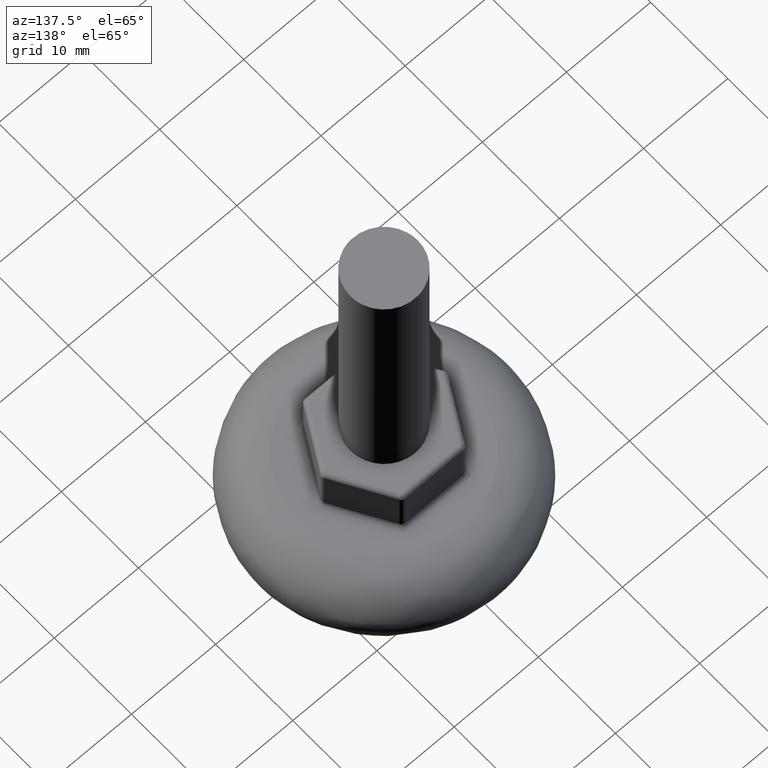
[diagram: clean part render]
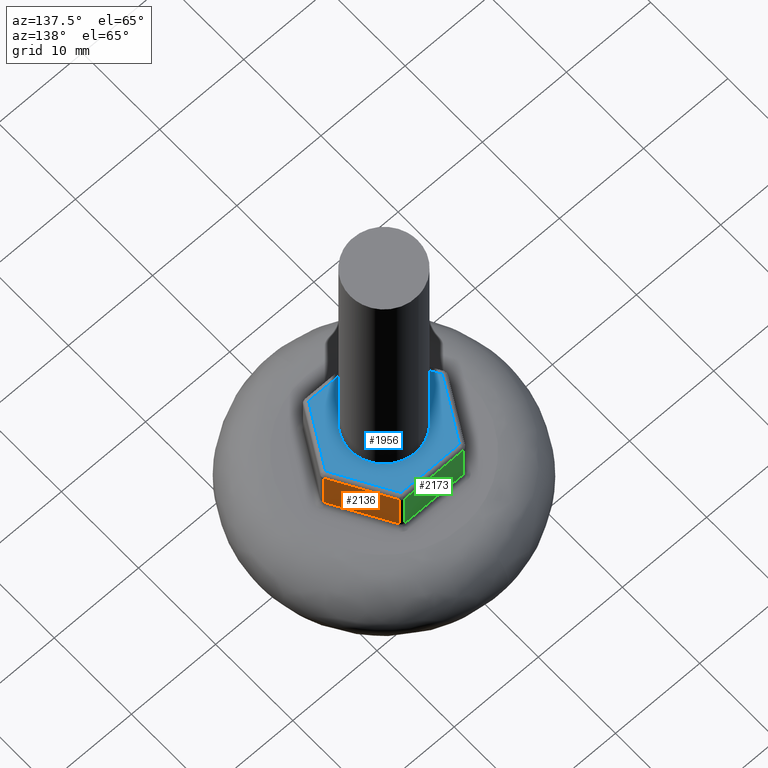
[diagram: same view with three faces highlighted in distinct colors, each labeled with its STEP entity id]
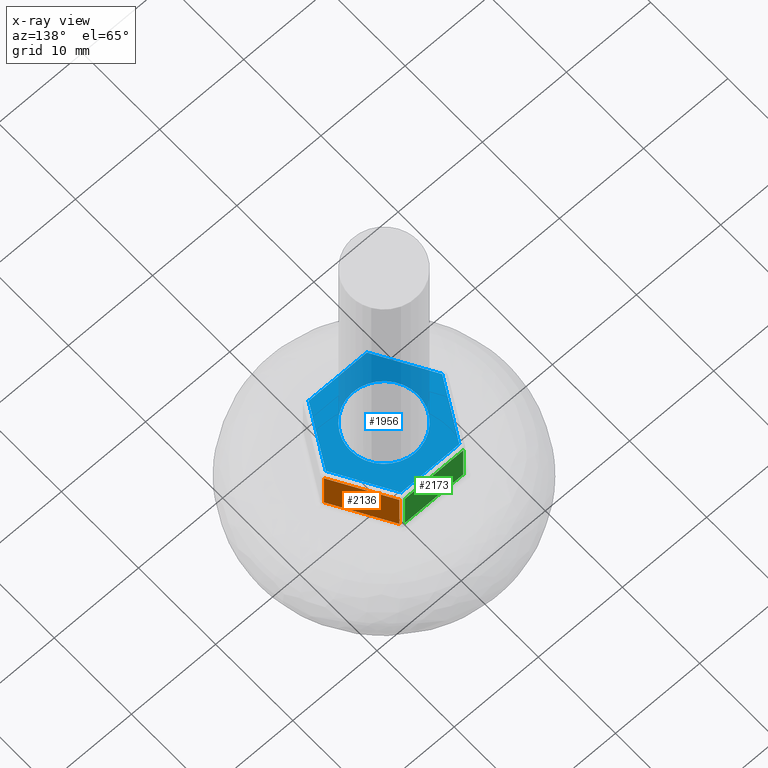
[diagram: x-ray of the same camera — body ghosted, the three highlighted faces saturated]
A machine part, auxiliary view with three faces highlighted in distinct colors.
The next image is the same camera in x-ray (body ghosted, the three faces saturated) — at least one of them is partly hidden behind the body in this view.
Their STEP definitions:

[orange] entity #2136 — the highlighted face is a freeform B-spline surface patch.
#928=CARTESIAN_POINT('',(3.891559987973060,6.250000020831281,10.500000000000000));
#929=VERTEX_POINT('',#928);
#1053=CARTESIAN_POINT('',(7.355662000000000,0.250000000000000,10.500000000000000));
#1054=VERTEX_POINT('',#1053);
#1078=CARTESIAN_POINT('',(7.355662000000000,0.250000000000000,10.500000000000000));
#1079=CARTESIAN_POINT('',(3.891559987973060,6.250000020831281,10.500000000000000));
#1080=QUASI_UNIFORM_CURVE('',1,(#1078,#1079),.UNSPECIFIED.,.F.,.U.);
#1081=EDGE_CURVE('',#1054,#929,#1080,.T.);
#1503=CARTESIAN_POINT('',(7.355662000000000,0.250000000000000,15.500000000000000));
#1504=VERTEX_POINT('',#1503);
#1607=CARTESIAN_POINT('',(3.891559987973060,6.250000020831281,15.500000000000000));
#1608=VERTEX_POINT('',#1607);
#1630=CARTESIAN_POINT('',(3.891559987973060,6.250000020831281,15.500000000000000));
#1631=CARTESIAN_POINT('',(7.355662000000000,0.250000000000000,15.500000000000000));
#1632=QUASI_UNIFORM_CURVE('',1,(#1630,#1631),.UNSPECIFIED.,.F.,.U.);
#1633=EDGE_CURVE('',#1608,#1504,#1632,.T.);
#2112=CARTESIAN_POINT('',(7.355662000000000,0.250000000000000,15.500000000000000));
#2113=CARTESIAN_POINT('',(7.355662000000000,0.250000000000000,10.500000000000000));
#2114=QUASI_UNIFORM_CURVE('',1,(#2112,#2113),.UNSPECIFIED.,.F.,.U.);
#2115=EDGE_CURVE('',#1504,#1054,#2114,.T.);
#2121=CARTESIAN_POINT('',(7.528693856268136,-0.049699933087649,10.250250009690969));
#2122=CARTESIAN_POINT('',(3.718528007818980,6.549700168495651,10.250250009690969));
#2123=CARTESIAN_POINT('',(7.528693856268136,-0.049699933087649,15.749750124419480));
#2124=CARTESIAN_POINT('',(3.718528007818980,6.549700168495651,15.749750124419480));
#2125=B_SPLINE_SURFACE_WITH_KNOTS('',1,1,((#2121,#2123),(#2122,#2124)),.UNSPECIFIED.,.F.,.F.,.U.,(2,2),(2,2),(0.0,7.620331061933329),(0.0,5.499500114728511),.UNSPECIFIED.);
#2126=ORIENTED_EDGE('',*,*,#2115,.T.);
#2127=ORIENTED_EDGE('',*,*,#1081,.T.);
#2128=CARTESIAN_POINT('',(3.891559987973060,6.250000020831281,15.500000000000000));
#2129=CARTESIAN_POINT('',(3.891559987973060,6.250000020831281,10.500000000000000));
#2130=QUASI_UNIFORM_CURVE('',1,(#2128,#2129),.UNSPECIFIED.,.F.,.U.);
#2131=EDGE_CURVE('',#1608,#929,#2130,.T.);
#2132=ORIENTED_EDGE('',*,*,#2131,.F.);
#2133=ORIENTED_EDGE('',*,*,#1633,.T.);
#2134=EDGE_LOOP('',(#2126,#2127,#2132,#2133));
#2135=FACE_OUTER_BOUND('',#2134,.T.);
#2136=ADVANCED_FACE('',(#2135),#2125,.T.);

[blue] entity #1956 — the highlighted face is a freeform B-spline surface patch.
#151=CARTESIAN_POINT('',(0.034906142043231,3.999847692256251,16.000000000000249));
#152=VERTEX_POINT('',#151);
#158=CARTESIAN_POINT('',(-4.0,0.0,16.000000000000249));
#159=VERTEX_POINT('',#158);
#160=CARTESIAN_POINT('',(0.034906142043231,3.999847692256251,16.000000000000249));
#161=CARTESIAN_POINT('',(0.017453403332544,4.000000000000001,16.000000000000249));
#162=CARTESIAN_POINT('',(0.0,4.0,16.000000000000249));
#163=CARTESIAN_POINT('',(-4.000000000000000,4.000000000000000,16.000000000000252));
#164=CARTESIAN_POINT('',(-4.0,0.0,16.000000000000249));
#172=(BOUNDED_CURVE()B_SPLINE_CURVE(2,(#160,#161,#162,#163,#164),.UNSPECIFIED.,.F.,.U.)B_SPLINE_CURVE_WITH_KNOTS((3,2,3),(0.248460105660633,0.250000000000000,0.500000000000000),.UNSPECIFIED.)CURVE()GEOMETRIC_REPRESENTATION_ITEM()RATIONAL_B_SPLINE_CURVE((0.996414028090268,0.998195901561240,1.0,0.707106781186548,1.0))REPRESENTATION_ITEM(''));
#173=EDGE_CURVE('',#152,#159,#172,.T.);
#175=CARTESIAN_POINT('',(4.0,0.0,16.000000000000249));
#176=VERTEX_POINT('',#175);
#177=CARTESIAN_POINT('',(-4.0,0.0,16.000000000000249));
#178=CARTESIAN_POINT('',(-4.000000000000000,-4.000000000000000,16.000000000000252));
#179=CARTESIAN_POINT('',(0.0,-4.0,16.000000000000249));
#180=CARTESIAN_POINT('',(4.000000000000000,-4.000000000000000,16.000000000000252));
#181=CARTESIAN_POINT('',(4.0,0.0,16.000000000000249));
#189=(BOUNDED_CURVE()B_SPLINE_CURVE(2,(#177,#178,#179,#180,#181),.UNSPECIFIED.,.F.,.U.)B_SPLINE_CURVE_WITH_KNOTS((3,2,3),(0.500000000000000,0.750000000000000,1.0),.UNSPECIFIED.)CURVE()GEOMETRIC_REPRESENTATION_ITEM()RATIONAL_B_SPLINE_CURVE((1.0,0.707106781186548,1.0,0.707106781186548,1.0))REPRESENTATION_ITEM(''));
#190=EDGE_CURVE('',#159,#176,#189,.T.);
#192=CARTESIAN_POINT('',(3.896872612708104,0.902432180457630,16.000000000000249));
#193=VERTEX_POINT('',#192);
#194=CARTESIAN_POINT('',(4.0,0.0,16.000000000000249));
#195=CARTESIAN_POINT('',(4.0,0.457108642747075,16.000000000000252));
#196=CARTESIAN_POINT('',(3.896872612708105,0.902432180457630,16.000000000000245));
#204=(BOUNDED_CURVE()B_SPLINE_CURVE(2,(#194,#195,#196),.UNSPECIFIED.,.F.,.U.)B_SPLINE_CURVE_WITH_KNOTS((3,3),(0.0,0.038577028217657),.UNSPECIFIED.)CURVE()GEOMETRIC_REPRESENTATION_ITEM()RATIONAL_B_SPLINE_CURVE((1.0,0.954804200132293,0.923556557439114))REPRESENTATION_ITEM(''));
#205=EDGE_CURVE('',#176,#193,#204,.T.);
#243=CARTESIAN_POINT('',(3.896872612708105,0.902432180457630,16.000000000000245));
#244=CARTESIAN_POINT('',(3.185945673909592,3.972348986779831,16.000000000000256));
#245=CARTESIAN_POINT('',(0.034906142043231,3.999847692256250,16.000000000000249));
#253=(BOUNDED_CURVE()B_SPLINE_CURVE(2,(#243,#244,#245),.UNSPECIFIED.,.F.,.U.)B_SPLINE_CURVE_WITH_KNOTS((3,3),(0.038577028217657,0.248460105660632),.UNSPECIFIED.)CURVE()GEOMETRIC_REPRESENTATION_ITEM()RATIONAL_B_SPLINE_CURVE((0.923556557439114,0.753549905441979,0.996414028090268))REPRESENTATION_ITEM(''));
#254=EDGE_CURVE('',#193,#152,#253,.T.);
#1357=CARTESIAN_POINT('',(3.458547858107785,-6.0,16.0));
#1358=VERTEX_POINT('',#1357);
#1405=CARTESIAN_POINT('',(6.922649223580851,-0.000000129084459,16.0));
#1406=VERTEX_POINT('',#1405);
#1420=CARTESIAN_POINT('',(3.458547858107785,-6.0,16.0));
#1421=CARTESIAN_POINT('',(6.922649223580851,-0.000000129084459,16.0));
#1422=QUASI_UNIFORM_CURVE('',1,(#1420,#1421),.UNSPECIFIED.,.F.,.U.);
#1423=EDGE_CURVE('',#1358,#1406,#1422,.T.);
#1448=CARTESIAN_POINT('',(-3.458548298107790,-6.0,16.0));
#1449=VERTEX_POINT('',#1448);
#1471=CARTESIAN_POINT('',(-3.458548298107790,-6.0,16.0));
#1472=CARTESIAN_POINT('',(3.458547858107785,-6.0,16.0));
#1473=QUASI_UNIFORM_CURVE('',1,(#1471,#1472),.UNSPECIFIED.,.F.,.U.);
#1474=EDGE_CURVE('',#1449,#1358,#1473,.T.);
#1609=CARTESIAN_POINT('',(3.458547298107785,6.0,16.0));
#1610=VERTEX_POINT('',#1609);
#1624=CARTESIAN_POINT('',(6.922649223580851,-0.000000129084459,16.0));
#1625=CARTESIAN_POINT('',(3.458547298107785,6.0,16.0));
#1626=QUASI_UNIFORM_CURVE('',1,(#1624,#1625),.UNSPECIFIED.,.F.,.U.);
#1627=EDGE_CURVE('',#1406,#1610,#1626,.T.);
#1652=CARTESIAN_POINT('',(-6.922650223580830,0.000000129084469,16.0));
#1653=VERTEX_POINT('',#1652);
#1675=CARTESIAN_POINT('',(-6.922650223580830,0.000000129084469,16.0));
#1676=CARTESIAN_POINT('',(-3.458548298107790,-6.0,16.0));
#1677=QUASI_UNIFORM_CURVE('',1,(#1675,#1676),.UNSPECIFIED.,.F.,.U.);
#1678=EDGE_CURVE('',#1653,#1449,#1677,.T.);
#1811=CARTESIAN_POINT('',(-3.458548298107790,6.0,16.0));
#1812=VERTEX_POINT('',#1811);
#1826=CARTESIAN_POINT('',(3.458547298107785,6.0,16.0));
#1827=CARTESIAN_POINT('',(-3.458548298107790,6.0,16.0));
#1828=QUASI_UNIFORM_CURVE('',1,(#1826,#1827),.UNSPECIFIED.,.F.,.U.);
#1829=EDGE_CURVE('',#1610,#1812,#1828,.T.);
#1875=CARTESIAN_POINT('',(-3.458548298107790,6.0,16.0));
#1876=CARTESIAN_POINT('',(-6.922650223580830,0.000000129084469,16.0));
#1877=QUASI_UNIFORM_CURVE('',1,(#1875,#1876),.UNSPECIFIED.,.F.,.U.);
#1878=EDGE_CURVE('',#1812,#1653,#1877,.T.);
#1937=CARTESIAN_POINT('',(-7.614223034101445,-6.599399976741672,16.0));
#1938=CARTESIAN_POINT('',(7.614222281674713,-6.599399976741672,16.0));
#1939=CARTESIAN_POINT('',(-7.614223034101445,6.599400298606753,16.0));
#1940=CARTESIAN_POINT('',(7.614222281674713,6.599400298606753,16.0));
#1941=B_SPLINE_SURFACE_WITH_KNOTS('',1,1,((#1937,#1939),(#1938,#1940)),.UNSPECIFIED.,.F.,.F.,.U.,(2,2),(2,2),(0.0,15.228445315776160),(0.0,13.198800275348431),.UNSPECIFIED.);
#1942=ORIENTED_EDGE('',*,*,#1423,.T.);
#1943=ORIENTED_EDGE('',*,*,#1627,.T.);
#1944=ORIENTED_EDGE('',*,*,#1829,.T.);
#1945=ORIENTED_EDGE('',*,*,#1878,.T.);
#1946=ORIENTED_EDGE('',*,*,#1678,.T.);
#1947=ORIENTED_EDGE('',*,*,#1474,.T.);
#1948=EDGE_LOOP('',(#1942,#1943,#1944,#1945,#1946,#1947));
#1949=FACE_OUTER_BOUND('',#1948,.T.);
#1950=ORIENTED_EDGE('',*,*,#190,.F.);
#1951=ORIENTED_EDGE('',*,*,#173,.F.);
#1952=ORIENTED_EDGE('',*,*,#254,.F.);
#1953=ORIENTED_EDGE('',*,*,#205,.F.);
#1954=EDGE_LOOP('',(#1950,#1951,#1952,#1953));
#1955=FACE_BOUND('',#1954,.T.);
#1956=ADVANCED_FACE('',(#1949,#1955),#1941,.T.);

[green] entity #2173 — the highlighted face is a freeform B-spline surface patch.
#710=CARTESIAN_POINT('',(-3.458548298107790,6.500000000000000,10.500000000000000));
#711=VERTEX_POINT('',#710);
#835=CARTESIAN_POINT('',(3.458547298107785,6.500000000000000,10.500000000000000));
#836=VERTEX_POINT('',#835);
#858=CARTESIAN_POINT('',(3.458547298107785,6.500000000000000,10.500000000000000));
#859=CARTESIAN_POINT('',(-3.458548298107790,6.500000000000000,10.500000000000000));
#860=QUASI_UNIFORM_CURVE('',1,(#858,#859),.UNSPECIFIED.,.F.,.U.);
#861=EDGE_CURVE('',#836,#711,#860,.T.);
#1707=CARTESIAN_POINT('',(3.458547298107785,6.500000000000000,15.500000000000000));
#1708=VERTEX_POINT('',#1707);
#1809=CARTESIAN_POINT('',(-3.458548298107790,6.500000000000000,15.500000000000000));
#1810=VERTEX_POINT('',#1809);
#1832=CARTESIAN_POINT('',(-3.458548298107790,6.500000000000000,15.500000000000000));
#1833=CARTESIAN_POINT('',(3.458547298107785,6.500000000000000,15.500000000000000));
#1834=QUASI_UNIFORM_CURVE('',1,(#1832,#1833),.UNSPECIFIED.,.F.,.U.);
#1835=EDGE_CURVE('',#1810,#1708,#1834,.T.);
#1971=CARTESIAN_POINT('',(-3.458548298107790,6.500000000000000,15.500000000000000));
#1972=CARTESIAN_POINT('',(-3.458548298107790,6.500000000000000,10.500000000000000));
#1973=QUASI_UNIFORM_CURVE('',1,(#1971,#1972),.UNSPECIFIED.,.F.,.U.);
#1974=EDGE_CURVE('',#1810,#711,#1973,.T.);
#2153=CARTESIAN_POINT('',(3.458547298107785,6.500000000000000,15.500000000000000));
#2154=CARTESIAN_POINT('',(3.458547298107785,6.500000000000000,10.500000000000000));
#2155=QUASI_UNIFORM_CURVE('',1,(#2153,#2154),.UNSPECIFIED.,.F.,.U.);
#2156=EDGE_CURVE('',#1708,#836,#2155,.T.);
#2162=CARTESIAN_POINT('',(-3.804057209732084,6.500000000000000,10.250250009690969));
#2163=CARTESIAN_POINT('',(-3.804057209732084,6.500000000000000,15.749750124419480));
#2164=CARTESIAN_POINT('',(3.804056395263042,6.500000000000000,10.250250009690969));
#2165=CARTESIAN_POINT('',(3.804056395263042,6.500000000000000,15.749750124419480));
#2166=B_SPLINE_SURFACE_WITH_KNOTS('',1,1,((#2162,#2164),(#2163,#2165)),.UNSPECIFIED.,.F.,.F.,.U.,(2,2),(2,2),(0.0,5.499500114728514),(0.0,7.608113604995126),.UNSPECIFIED.);
#2167=ORIENTED_EDGE('',*,*,#2156,.T.);
#2168=ORIENTED_EDGE('',*,*,#861,.T.);
#2169=ORIENTED_EDGE('',*,*,#1974,.F.);
#2170=ORIENTED_EDGE('',*,*,#1835,.T.);
#2171=EDGE_LOOP('',(#2167,#2168,#2169,#2170));
#2172=FACE_OUTER_BOUND('',#2171,.T.);
#2173=ADVANCED_FACE('',(#2172),#2166,.T.);